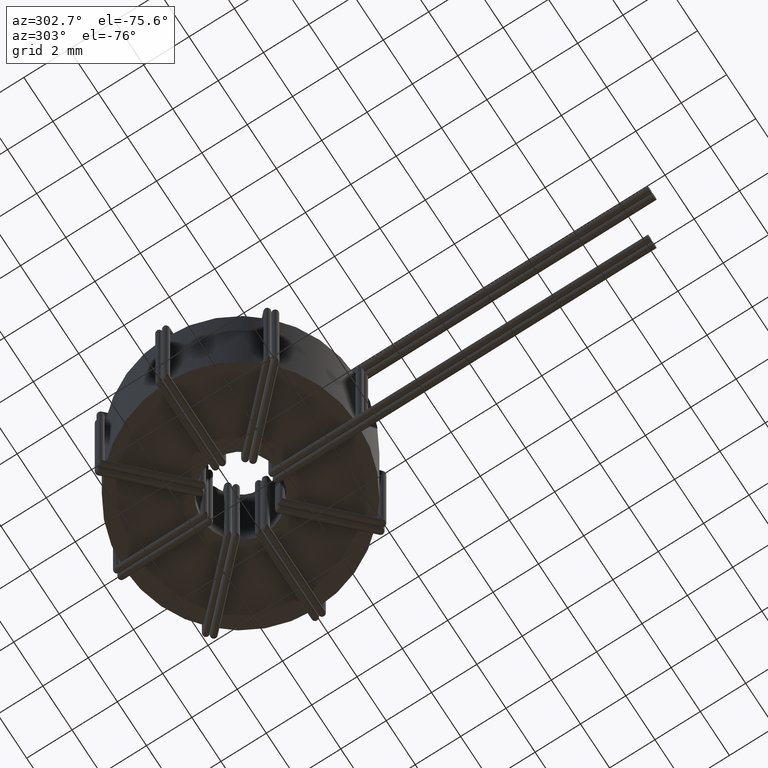
[diagram: clean part render]
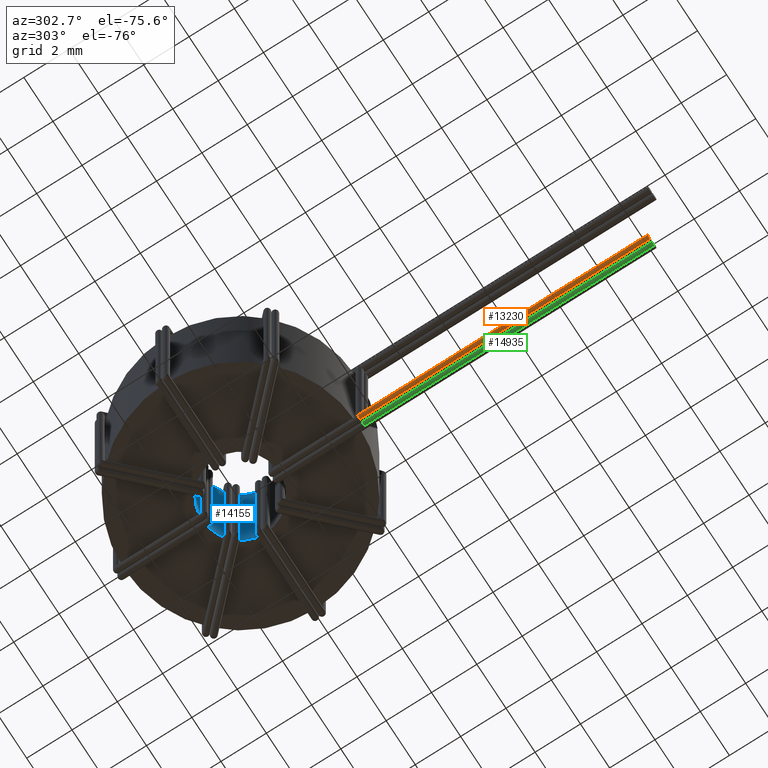
[diagram: same view with three faces highlighted in distinct colors, each labeled with its STEP entity id]
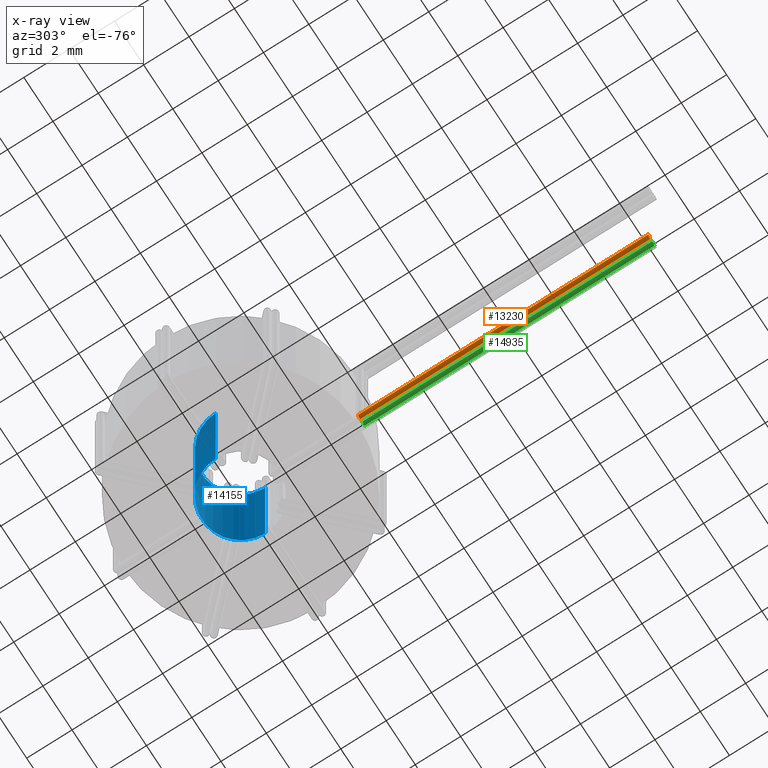
[diagram: x-ray of the same camera — body ghosted, the three highlighted faces saturated]
A machine part, auxiliary view with three faces highlighted in distinct colors.
The next image is the same camera in x-ray (body ghosted, the three faces saturated) — at least one of them is partly hidden behind the body in this view.
Their STEP definitions:

[orange] entity #13230 — the highlighted cylindrical surface (edge-blend (fillet) strip) has radius 0.149 mm, axis along (-0, 1, 0).
#235 = CARTESIAN_POINT ( 'NONE',  ( -0.2919306283461016200, -5.399223490121617200, -0.1538498848149591200 ) ) ;
#817 = DIRECTION ( 'NONE',  ( -0.0000000000000000000, 1.000000000000000000, 0.0000000000000000000 ) ) ;
#1593 = CARTESIAN_POINT ( 'NONE',  ( -0.2737040409070634600, -5.436804868923946500, -0.1149013887635371000 ) ) ;
#1713 = VECTOR ( 'NONE', #817, 1000.000000000000000 ) ;
#1714 = DIRECTION ( 'NONE',  ( 0.0000000000000000000, 0.0000000000000000000, 1.000000000000000000 ) ) ;
#1874 = VECTOR ( 'NONE', #5293, 1000.000000000000000 ) ;
#1928 = B_SPLINE_CURVE_WITH_KNOTS ( 'NONE', 3,
 ( #12485, #2828, #13842, #11390, #235, #15007, #1593, #6520, #4002, #14955 ),
 .UNSPECIFIED., .F., .F.,
 ( 4, 2, 2, 2, 4 ),
 ( 0.0008257765672517971500, 0.0008604697093703482600, 0.0008951628514888992700, 0.0009645491357260014900, 0.001103321704200204200 ),
 .UNSPECIFIED. ) ;
#2411 = DIRECTION ( 'NONE',  ( 0.0000000000000000000, 0.0000000000000000000, 1.000000000000000000 ) ) ;
#2429 = EDGE_CURVE ( 'NONE', #15044, #5192, #7201, .T. ) ;
#2455 = CARTESIAN_POINT ( 'NONE',  ( -0.2989999999999736800, -5.367291616465871100, -0.2000000000000000100 ) ) ;
#2828 = CARTESIAN_POINT ( 'NONE',  ( -0.2990000000010505900, -5.367291616618219400, -0.1884754578671950000 ) ) ;
#3505 = EDGE_CURVE ( 'NONE', #7418, #15044, #5898, .T. ) ;
#4002 = CARTESIAN_POINT ( 'NONE',  ( -0.1970694962250210700, -5.500000000000000900, -0.05100000000000885100 ) ) ;
#4434 = EDGE_LOOP ( 'NONE', ( #15251, #12848, #14500, #13321, #14128 ) ) ;
#4539 = DIRECTION ( 'NONE',  ( -0.0000000000000000000, 1.000000000000000000, 0.0000000000000000000 ) ) ;
#4880 = AXIS2_PLACEMENT_3D ( 'NONE', #5323, #12773, #1714 ) ;
#4994 = LINE ( 'NONE', #14338, #1713 ) ;
#5192 = VERTEX_POINT ( 'NONE', #2455 ) ;
#5293 = DIRECTION ( 'NONE',  ( -0.0000000000000000000, 1.000000000000000000, 0.0000000000000000000 ) ) ;
#5323 = CARTESIAN_POINT ( 'NONE',  ( -0.1499999999999807900, -5.367291616465871100, -0.1999999999999999800 ) ) ;
#5547 = EDGE_CURVE ( 'NONE', #10928, #7257, #4994, .T. ) ;
#5898 = LINE ( 'NONE', #7491, #1874 ) ;
#6520 = CARTESIAN_POINT ( 'NONE',  ( -0.2367799981628081500, -5.477751054560961600, -0.07333475060881607100 ) ) ;
#7201 = CIRCLE ( 'NONE', #4880, 0.1489999999999911400 ) ;
#7200 = DIRECTION ( 'NONE',  ( 0.0000000000000000000, 0.0000000000000000000, -1.000000000000000000 ) ) ;
#7257 = VERTEX_POINT ( 'NONE', #15270 ) ;
#7397 = CARTESIAN_POINT ( 'NONE',  ( -0.1499999999999807900, -18.14999999999999900, -0.05100000000000883000 ) ) ;
#7418 = VERTEX_POINT ( 'NONE', #10301 ) ;
#7491 = CARTESIAN_POINT ( 'NONE',  ( -0.1499999999999807600, -18.14999999999999900, -0.3489999999999911500 ) ) ;
#9442 = AXIS2_PLACEMENT_3D ( 'NONE', #14501, #9758, #7200 ) ;
#9533 = FACE_OUTER_BOUND ( 'NONE', #4434, .T. ) ;
#9574 = CARTESIAN_POINT ( 'NONE',  ( -0.1499999999999812600, -5.367291616465871100, -0.3489999999999909300 ) ) ;
#9758 = DIRECTION ( 'NONE',  ( 0.0000000000000000000, -1.000000000000000000, 0.0000000000000000000 ) ) ;
#10301 = CARTESIAN_POINT ( 'NONE',  ( -0.1499999999999807600, -18.14999999999999900, -0.3489999999999911500 ) ) ;
#10928 = VERTEX_POINT ( 'NONE', #7397 ) ;
#11103 = CYLINDRICAL_SURFACE ( 'NONE', #15610, 0.1489999999999911400 ) ;
#11390 = CARTESIAN_POINT ( 'NONE',  ( -0.2943578786991077900, -5.391455782197115600, -0.1620708368407252900 ) ) ;
#11880 = CARTESIAN_POINT ( 'NONE',  ( -0.1499999999999807900, -18.14999999999999900, -0.1999999999999999800 ) ) ;
#11948 = EDGE_CURVE ( 'NONE', #10928, #7418, #14620, .T. ) ;
#12485 = CARTESIAN_POINT ( 'NONE',  ( -0.2989999999999736800, -5.367291616465871100, -0.2000000000000000100 ) ) ;
#12773 = DIRECTION ( 'NONE',  ( -0.0000000000000000000, 1.000000000000000000, -0.0000000000000000000 ) ) ;
#12848 = ORIENTED_EDGE ( 'NONE', *, *, #11948, .F. ) ;
#13230 = ADVANCED_FACE ( 'NONE', ( #9533 ), #11103, .T. ) ;
#13321 = ORIENTED_EDGE ( 'NONE', *, *, #14275, .F. ) ;
#13842 = CARTESIAN_POINT ( 'NONE',  ( -0.2978091505817857000, -5.376650216216231300, -0.1792569634633684700 ) ) ;
#14128 = ORIENTED_EDGE ( 'NONE', *, *, #2429, .F. ) ;
#14275 = EDGE_CURVE ( 'NONE', #5192, #7257, #1928, .T. ) ;
#14338 = CARTESIAN_POINT ( 'NONE',  ( -0.1499999999999807900, -18.14999999999999900, -0.05100000000000883000 ) ) ;
#14500 = ORIENTED_EDGE ( 'NONE', *, *, #5547, .T. ) ;
#14501 = CARTESIAN_POINT ( 'NONE',  ( -0.1499999999999807900, -18.14999999999999900, -0.1999999999999999800 ) ) ;
#14620 = CIRCLE ( 'NONE', #9442, 0.1489999999999911400 ) ;
#14955 = CARTESIAN_POINT ( 'NONE',  ( -0.1499999999999807900, -5.500000000000001800, -0.05100000000000885800 ) ) ;
#15007 = CARTESIAN_POINT ( 'NONE',  ( -0.2826121712128773500, -5.421993284515837200, -0.1299460377805175300 ) ) ;
#15044 = VERTEX_POINT ( 'NONE', #9574 ) ;
#15251 = ORIENTED_EDGE ( 'NONE', *, *, #3505, .F. ) ;
#15270 = CARTESIAN_POINT ( 'NONE',  ( -0.1499999999999807900, -5.500000000000001800, -0.05100000000000885800 ) ) ;
#15610 = AXIS2_PLACEMENT_3D ( 'NONE', #11880, #4539, #2411 ) ;

[blue] entity #14155 — the highlighted cylindrical surface (partial cylindrical patch) has radius 1.6995 mm, axis along (-0, -0, -1).
#498 = EDGE_CURVE ( 'NONE', #12454, #8642, #8385, .T. ) ;
#713 = DIRECTION ( 'NONE',  ( 1.000000000000000000, 0.0000000000000000000, 0.0000000000000000000 ) ) ;
#932 = DIRECTION ( 'NONE',  ( 0.0000000000000000000, 0.0000000000000000000, 1.000000000000000000 ) ) ;
#953 = CARTESIAN_POINT ( 'NONE',  ( 0.0000000000000000000, 0.0000000000000000000, 6.799999999999999800 ) ) ;
#967 = CIRCLE ( 'NONE', #13948, 1.699500000000000200 ) ;
#1183 = DIRECTION ( 'NONE',  ( -0.0000000000000000000, -0.0000000000000000000, -1.000000000000000000 ) ) ;
#2204 = DIRECTION ( 'NONE',  ( 0.0000000000000000000, 0.0000000000000000000, 1.000000000000000000 ) ) ;
#3237 = ORIENTED_EDGE ( 'NONE', *, *, #498, .T. ) ;
#3641 = DIRECTION ( 'NONE',  ( -1.000000000000000000, 0.0000000000000000000, 0.0000000000000000000 ) ) ;
#4675 = EDGE_CURVE ( 'NONE', #6338, #13349, #14774, .T. ) ;
#4921 = CARTESIAN_POINT ( 'NONE',  ( -1.699500000000000200, 0.0000000000000000000, 0.0000000000000000000 ) ) ;
#5151 = DIRECTION ( 'NONE',  ( -0.0000000000000000000, -0.0000000000000000000, -1.000000000000000000 ) ) ;
#5243 = VECTOR ( 'NONE', #5151, 1000.000000000000000 ) ;
#5467 = ORIENTED_EDGE ( 'NONE', *, *, #11796, .F. ) ;
#5542 = ORIENTED_EDGE ( 'NONE', *, *, #7686, .T. ) ;
#5881 = CARTESIAN_POINT ( 'NONE',  ( -1.699500000000000200, 0.0000000000000000000, 6.799999999999999800 ) ) ;
#5986 = ORIENTED_EDGE ( 'NONE', *, *, #4675, .F. ) ;
#6338 = VERTEX_POINT ( 'NONE', #13457 ) ;
#7563 = CIRCLE ( 'NONE', #14351, 1.699500000000000200 ) ;
#7686 = EDGE_CURVE ( 'NONE', #6338, #12454, #967, .T. ) ;
#8061 = CARTESIAN_POINT ( 'NONE',  ( 0.0000000000000000000, 0.0000000000000000000, 0.0000000000000000000 ) ) ;
#8385 = LINE ( 'NONE', #5881, #13766 ) ;
#8642 = VERTEX_POINT ( 'NONE', #4921 ) ;
#8866 = CARTESIAN_POINT ( 'NONE',  ( 1.699500000000000200, 2.081287235150927300E-016, 6.799999999999999800 ) ) ;
#9148 = EDGE_LOOP ( 'NONE', ( #5986, #5542, #3237, #5467 ) ) ;
#11547 = CARTESIAN_POINT ( 'NONE',  ( 1.699500000000000200, 2.081287235150927300E-016, 0.0000000000000000000 ) ) ;
#11793 = CYLINDRICAL_SURFACE ( 'NONE', #14626, 1.699500000000000200 ) ;
#11796 = EDGE_CURVE ( 'NONE', #13349, #8642, #7563, .T. ) ;
#12217 = CARTESIAN_POINT ( 'NONE',  ( -1.699500000000000200, 0.0000000000000000000, 6.799999999999999800 ) ) ;
#12454 = VERTEX_POINT ( 'NONE', #12217 ) ;
#12965 = FACE_OUTER_BOUND ( 'NONE', #9148, .T. ) ;
#13349 = VERTEX_POINT ( 'NONE', #11547 ) ;
#13457 = CARTESIAN_POINT ( 'NONE',  ( 1.699500000000000200, 2.081287235150927300E-016, 6.799999999999999800 ) ) ;
#13634 = CARTESIAN_POINT ( 'NONE',  ( 0.0000000000000000000, 0.0000000000000000000, 6.799999999999999800 ) ) ;
#13766 = VECTOR ( 'NONE', #14353, 1000.000000000000000 ) ;
#13948 = AXIS2_PLACEMENT_3D ( 'NONE', #953, #2204, #15657 ) ;
#14155 = ADVANCED_FACE ( 'NONE', ( #12965 ), #11793, .F. ) ;
#14351 = AXIS2_PLACEMENT_3D ( 'NONE', #8061, #932, #713 ) ;
#14353 = DIRECTION ( 'NONE',  ( -0.0000000000000000000, -0.0000000000000000000, -1.000000000000000000 ) ) ;
#14626 = AXIS2_PLACEMENT_3D ( 'NONE', #13634, #1183, #3641 ) ;
#14774 = LINE ( 'NONE', #8866, #5243 ) ;
#15657 = DIRECTION ( 'NONE',  ( 1.000000000000000000, 0.0000000000000000000, 0.0000000000000000000 ) ) ;

[green] entity #14935 — the highlighted cylindrical surface (edge-blend (fillet) strip) has radius 0.149 mm, axis along (-0, 1, 0).
#143 = EDGE_CURVE ( 'NONE', #490, #11085, #1918, .T. ) ;
#490 = VERTEX_POINT ( 'NONE', #10326 ) ;
#499 = CARTESIAN_POINT ( 'NONE',  ( 0.02629595909293652400, -5.436804868923945700, -0.1149013887635366700 ) ) ;
#534 = DIRECTION ( 'NONE',  ( -0.0000000000000000000, 1.000000000000000000, 0.0000000000000000000 ) ) ;
#1131 = CARTESIAN_POINT ( 'NONE',  ( 0.1500000000000191700, -5.367291616465871100, -0.1999999999999995100 ) ) ;
#1414 = CYLINDRICAL_SURFACE ( 'NONE', #7303, 0.1489999999999911100 ) ;
#1585 = LINE ( 'NONE', #15260, #2359 ) ;
#1918 = CIRCLE ( 'NONE', #3206, 0.1489999999999911100 ) ;
#2359 = VECTOR ( 'NONE', #10468, 1000.000000000000000 ) ;
#2460 = CARTESIAN_POINT ( 'NONE',  ( 0.1500000000000191700, -18.14999999999999900, -0.1999999999999995100 ) ) ;
#2953 = EDGE_CURVE ( 'NONE', #11085, #3010, #11362, .T. ) ;
#3010 = VERTEX_POINT ( 'NONE', #6742 ) ;
#3047 = CARTESIAN_POINT ( 'NONE',  ( 0.01738782878712269800, -5.421993284515839000, -0.1299460377805168900 ) ) ;
#3206 = AXIS2_PLACEMENT_3D ( 'NONE', #1131, #12158, #13380 ) ;
#3277 = VECTOR ( 'NONE', #7402, 1000.000000000000000 ) ;
#3497 = CARTESIAN_POINT ( 'NONE',  ( 0.1500000000000192000, -18.14999999999999900, -0.3489999999999906000 ) ) ;
#3825 = ORIENTED_EDGE ( 'NONE', *, *, #143, .F. ) ;
#4151 = ORIENTED_EDGE ( 'NONE', *, *, #9459, .T. ) ;
#4154 = CARTESIAN_POINT ( 'NONE',  ( 0.1029305037749801800, -5.500000000000000900, -0.05100000000000844800 ) ) ;
#4210 = CARTESIAN_POINT ( 'NONE',  ( 0.06322000183719185500, -5.477751054560961600, -0.07333475060881558500 ) ) ;
#5994 = AXIS2_PLACEMENT_3D ( 'NONE', #2460, #12197, #13367 ) ;
#6016 = CARTESIAN_POINT ( 'NONE',  ( 0.1500000000000192000, -18.14999999999999900, -0.3489999999999906000 ) ) ;
#6032 = EDGE_CURVE ( 'NONE', #15683, #10894, #8568, .T. ) ;
#6464 = ORIENTED_EDGE ( 'NONE', *, *, #2953, .F. ) ;
#6576 = CARTESIAN_POINT ( 'NONE',  ( 0.002190849418214532400, -5.376650216216230400, -0.1792569634633677000 ) ) ;
#6742 = CARTESIAN_POINT ( 'NONE',  ( 0.1500000000000191700, -5.500000000000000900, -0.05100000000000842100 ) ) ;
#6841 = ORIENTED_EDGE ( 'NONE', *, *, #6032, .F. ) ;
#7303 = AXIS2_PLACEMENT_3D ( 'NONE', #14031, #534, #11735 ) ;
#7367 = FACE_OUTER_BOUND ( 'NONE', #12445, .T. ) ;
#7402 = DIRECTION ( 'NONE',  ( -0.0000000000000000000, 1.000000000000000000, 0.0000000000000000000 ) ) ;
#8568 = CIRCLE ( 'NONE', #5994, 0.1489999999999910800 ) ;
#8812 = CARTESIAN_POINT ( 'NONE',  ( 0.0009999999989494204800, -5.367291616618223000, -0.1884754578671943800 ) ) ;
#9026 = CARTESIAN_POINT ( 'NONE',  ( 0.005642121300892238200, -5.391455782197113000, -0.1620708368407246000 ) ) ;
#9459 = EDGE_CURVE ( 'NONE', #15683, #3010, #1585, .T. ) ;
#10054 = CARTESIAN_POINT ( 'NONE',  ( 0.008069371653898420300, -5.399223490121615400, -0.1538498848149586800 ) ) ;
#10326 = CARTESIAN_POINT ( 'NONE',  ( 0.1500000000000187300, -5.367291616465871100, -0.3489999999999903700 ) ) ;
#10468 = DIRECTION ( 'NONE',  ( -0.0000000000000000000, 1.000000000000000000, 0.0000000000000000000 ) ) ;
#10475 = CARTESIAN_POINT ( 'NONE',  ( 0.1500000000000191700, -5.500000000000000900, -0.05100000000000842100 ) ) ;
#10702 = ORIENTED_EDGE ( 'NONE', *, *, #15601, .F. ) ;
#10894 = VERTEX_POINT ( 'NONE', #3497 ) ;
#11085 = VERTEX_POINT ( 'NONE', #13594 ) ;
#11362 = B_SPLINE_CURVE_WITH_KNOTS ( 'NONE', 3,
 ( #13892, #8812, #6576, #9026, #10054, #3047, #499, #4210, #4154, #10475 ),
 .UNSPECIFIED., .F., .F.,
 ( 4, 2, 2, 2, 4 ),
 ( 0.0008257765672517908600, 0.0008604697093703406700, 0.0008951628514888904800, 0.0009645491357259901100, 0.001103321704200190800 ),
 .UNSPECIFIED. ) ;
#11735 = DIRECTION ( 'NONE',  ( 0.0000000000000000000, 0.0000000000000000000, 1.000000000000000000 ) ) ;
#12158 = DIRECTION ( 'NONE',  ( -0.0000000000000000000, 1.000000000000000000, -0.0000000000000000000 ) ) ;
#12197 = DIRECTION ( 'NONE',  ( 0.0000000000000000000, -1.000000000000000000, 0.0000000000000000000 ) ) ;
#12445 = EDGE_LOOP ( 'NONE', ( #10702, #6841, #4151, #6464, #3825 ) ) ;
#13367 = DIRECTION ( 'NONE',  ( 0.0000000000000000000, 0.0000000000000000000, -1.000000000000000000 ) ) ;
#13380 = DIRECTION ( 'NONE',  ( 0.0000000000000000000, 0.0000000000000000000, 1.000000000000000000 ) ) ;
#13594 = CARTESIAN_POINT ( 'NONE',  ( 0.001000000000028471200, -5.367291616465871100, -0.1999999999999995400 ) ) ;
#13892 = CARTESIAN_POINT ( 'NONE',  ( 0.001000000000028471200, -5.367291616465871100, -0.1999999999999995400 ) ) ;
#14031 = CARTESIAN_POINT ( 'NONE',  ( 0.1500000000000191700, -18.14999999999999900, -0.1999999999999995100 ) ) ;
#14530 = LINE ( 'NONE', #6016, #3277 ) ;
#14922 = CARTESIAN_POINT ( 'NONE',  ( 0.1500000000000191700, -18.14999999999999900, -0.05100000000000842100 ) ) ;
#14935 = ADVANCED_FACE ( 'NONE', ( #7367 ), #1414, .T. ) ;
#15260 = CARTESIAN_POINT ( 'NONE',  ( 0.1500000000000191700, -18.14999999999999900, -0.05100000000000842100 ) ) ;
#15601 = EDGE_CURVE ( 'NONE', #10894, #490, #14530, .T. ) ;
#15683 = VERTEX_POINT ( 'NONE', #14922 ) ;